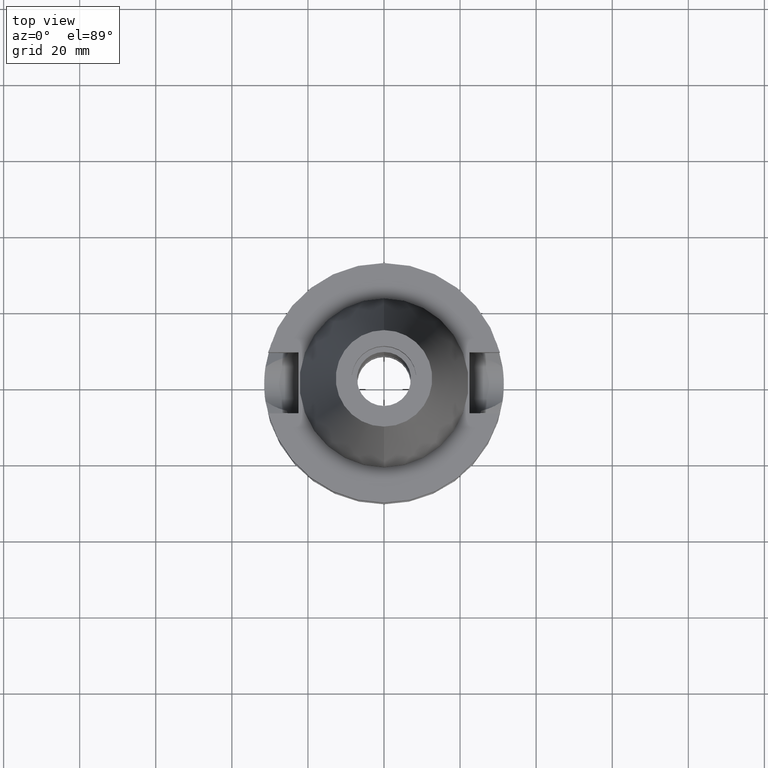
[diagram: clean part render]
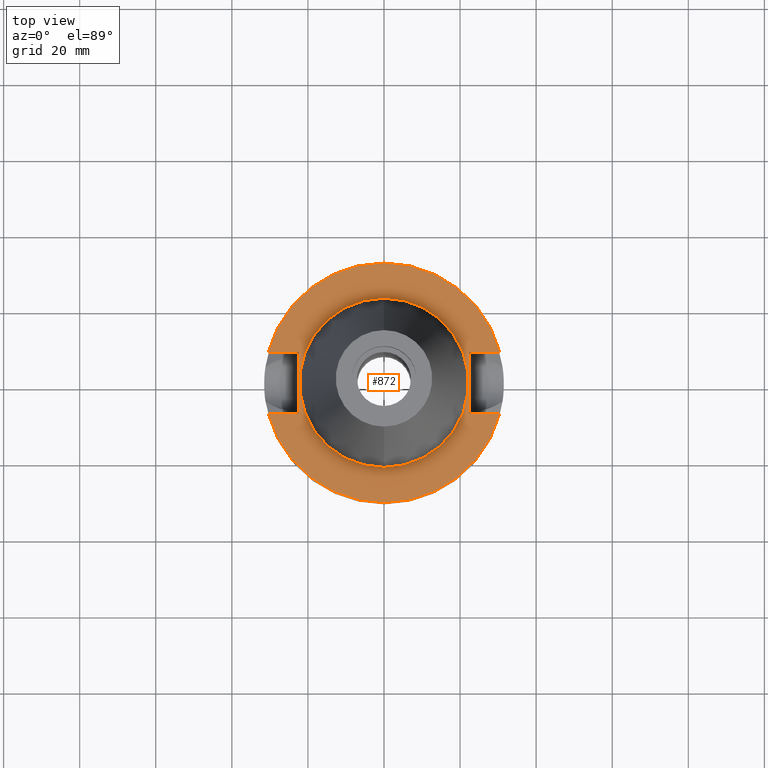
[diagram: same view with one face highlighted and labeled with its STEP entity id]
A machine part, top view. The second image highlights one B-rep face of the part: STEP entity #872.
In plain terms, the highlighted planar face has unit normal (0, 0, -1).
Its self-contained STEP definition (entity closure, byte-faithful):
#119 = VECTOR ( 'NONE', #3424, 1000.000000000000000 ) ;
#188 = DIRECTION ( 'NONE',  ( 0.0000000000000000000, 0.0000000000000000000, 1.000000000000000000 ) ) ;
#206 = LINE ( 'NONE', #3312, #2989 ) ;
#208 = ORIENTED_EDGE ( 'NONE', *, *, #1116, .F. ) ;
#298 = AXIS2_PLACEMENT_3D ( 'NONE', #3107, #2720, #517 ) ;
#331 = CARTESIAN_POINT ( 'NONE',  ( 0.0000000000000000000, -22.22500000000000142, -2.000000000000000000 ) ) ;
#357 = VECTOR ( 'NONE', #3148, 1000.000000000000000 ) ;
#375 = CARTESIAN_POINT ( 'NONE',  ( 0.0000000000000000000, 22.22500000000000142, -2.000000000000000000 ) ) ;
#460 = EDGE_CURVE ( 'NONE', #1214, #2730, #2681, .T. ) ;
#498 = CARTESIAN_POINT ( 'NONE',  ( -30.45402272279000044, 8.050000000000000711, -2.000000000000000000 ) ) ;
#517 = DIRECTION ( 'NONE',  ( 0.0000000000000000000, -1.000000000000000000, 0.0000000000000000000 ) ) ;
#529 = AXIS2_PLACEMENT_3D ( 'NONE', #2731, #1917, #3030 ) ;
#583 = LINE ( 'NONE', #1688, #357 ) ;
#626 = DIRECTION ( 'NONE',  ( 0.0000000000000000000, -1.000000000000000000, 0.0000000000000000000 ) ) ;
#634 = ORIENTED_EDGE ( 'NONE', *, *, #1158, .T. ) ;
#635 = CARTESIAN_POINT ( 'NONE',  ( -22.50000000000000000, -8.050000000000000711, -2.000000000000000000 ) ) ;
#677 = ORIENTED_EDGE ( 'NONE', *, *, #692, .F. ) ;
#692 = EDGE_CURVE ( 'NONE', #1952, #977, #3224, .T. ) ;
#727 = CARTESIAN_POINT ( 'NONE',  ( 30.45402272279000044, 8.050000000000000711, -2.000000000000000000 ) ) ;
#784 = CARTESIAN_POINT ( 'NONE',  ( -22.50000000000000000, -8.050000000000000711, -2.000000000000000000 ) ) ;
#806 = ORIENTED_EDGE ( 'NONE', *, *, #3183, .F. ) ;
#872 = ADVANCED_FACE ( 'NONE', ( #895, #2540 ), #1728, .F. ) ;
#895 = FACE_OUTER_BOUND ( 'NONE', #1704, .T. ) ;
#956 = EDGE_CURVE ( 'NONE', #2305, #977, #583, .T. ) ;
#977 = VERTEX_POINT ( 'NONE', #727 ) ;
#990 = DIRECTION ( 'NONE',  ( 0.0000000000000000000, 1.000000000000000000, 0.0000000000000000000 ) ) ;
#1087 = DIRECTION ( 'NONE',  ( -1.000000000000000000, 3.550916904668000126E-14, 0.0000000000000000000 ) ) ;
#1099 = EDGE_LOOP ( 'NONE', ( #2549, #2860 ) ) ;
#1116 = EDGE_CURVE ( 'NONE', #2305, #3552, #2727, .T. ) ;
#1123 = CIRCLE ( 'NONE', #298, 22.22500000000000142 ) ;
#1158 = EDGE_CURVE ( 'NONE', #1254, #2730, #206, .T. ) ;
#1169 = CARTESIAN_POINT ( 'NONE',  ( 0.0000000000000000000, 2.125007125879999817E-14, -2.000000000000000000 ) ) ;
#1214 = VERTEX_POINT ( 'NONE', #3045 ) ;
#1226 = LINE ( 'NONE', #635, #119 ) ;
#1254 = VERTEX_POINT ( 'NONE', #784 ) ;
#1378 = VERTEX_POINT ( 'NONE', #331 ) ;
#1453 = VERTEX_POINT ( 'NONE', #2049 ) ;
#1482 = DIRECTION ( 'NONE',  ( 0.0000000000000000000, -1.000000000000000000, 0.0000000000000000000 ) ) ;
#1601 = DIRECTION ( 'NONE',  ( 0.0000000000000000000, -1.000000000000000000, 0.0000000000000000000 ) ) ;
#1642 = CARTESIAN_POINT ( 'NONE',  ( -30.45402272279000044, -8.050000000000000711, -2.000000000000000000 ) ) ;
#1655 = LINE ( 'NONE', #1971, #2585 ) ;
#1675 = EDGE_CURVE ( 'NONE', #3552, #1214, #1910, .T. ) ;
#1688 = CARTESIAN_POINT ( 'NONE',  ( 22.50000000000000000, 8.050000000000000711, -2.000000000000000000 ) ) ;
#1704 = EDGE_LOOP ( 'NONE', ( #634, #1841, #3405, #208, #3190, #677, #806, #2134 ) ) ;
#1728 = PLANE ( 'NONE',  #3520 ) ;
#1745 = CARTESIAN_POINT ( 'NONE',  ( 0.0000000000000000000, 1.200153863163999924E-14, -2.000000000000000000 ) ) ;
#1753 = AXIS2_PLACEMENT_3D ( 'NONE', #1169, #3432, #626 ) ;
#1841 = ORIENTED_EDGE ( 'NONE', *, *, #460, .F. ) ;
#1910 = LINE ( 'NONE', #3039, #2388 ) ;
#1917 = DIRECTION ( 'NONE',  ( 0.0000000000000000000, 0.0000000000000000000, -1.000000000000000000 ) ) ;
#1937 = CARTESIAN_POINT ( 'NONE',  ( 22.50000000000000000, 8.050000000000000711, -2.000000000000000000 ) ) ;
#1952 = VERTEX_POINT ( 'NONE', #498 ) ;
#1971 = CARTESIAN_POINT ( 'NONE',  ( -22.50000000000000000, 8.050000000000000711, -2.000000000000000000 ) ) ;
#2049 = CARTESIAN_POINT ( 'NONE',  ( -22.50000000000000000, 8.050000000000000711, -2.000000000000000000 ) ) ;
#2134 = ORIENTED_EDGE ( 'NONE', *, *, #2815, .F. ) ;
#2305 = VERTEX_POINT ( 'NONE', #2889 ) ;
#2346 = CIRCLE ( 'NONE', #3189, 22.22500000000000142 ) ;
#2388 = VECTOR ( 'NONE', #2477, 1000.000000000000000 ) ;
#2477 = DIRECTION ( 'NONE',  ( 1.000000000000000000, 3.573249715389999860E-14, 0.0000000000000000000 ) ) ;
#2540 = FACE_BOUND ( 'NONE', #1099, .T. ) ;
#2549 = ORIENTED_EDGE ( 'NONE', *, *, #2974, .F. ) ;
#2550 = EDGE_CURVE ( 'NONE', #1378, #3454, #1123, .T. ) ;
#2585 = VECTOR ( 'NONE', #3396, 1000.000000000000000 ) ;
#2681 = CIRCLE ( 'NONE', #1753, 31.50000000000000000 ) ;
#2684 = CARTESIAN_POINT ( 'NONE',  ( 22.50000000000000000, -8.050000000000000711, -2.000000000000000000 ) ) ;
#2720 = DIRECTION ( 'NONE',  ( 0.0000000000000000000, 0.0000000000000000000, 1.000000000000000000 ) ) ;
#2727 = LINE ( 'NONE', #1937, #3176 ) ;
#2730 = VERTEX_POINT ( 'NONE', #1642 ) ;
#2731 = CARTESIAN_POINT ( 'NONE',  ( 0.0000000000000000000, 2.125007125879999817E-14, -2.000000000000000000 ) ) ;
#2815 = EDGE_CURVE ( 'NONE', #1254, #1453, #1226, .T. ) ;
#2860 = ORIENTED_EDGE ( 'NONE', *, *, #2550, .F. ) ;
#2889 = CARTESIAN_POINT ( 'NONE',  ( 22.50000000000000000, 8.050000000000000711, -2.000000000000000000 ) ) ;
#2974 = EDGE_CURVE ( 'NONE', #3454, #1378, #2346, .T. ) ;
#2989 = VECTOR ( 'NONE', #1087, 1000.000000000000000 ) ;
#3030 = DIRECTION ( 'NONE',  ( 0.0000000000000000000, 1.000000000000000000, 0.0000000000000000000 ) ) ;
#3039 = CARTESIAN_POINT ( 'NONE',  ( 22.50000000000000000, -8.050000000000000711, -2.000000000000000000 ) ) ;
#3045 = CARTESIAN_POINT ( 'NONE',  ( 30.45402272279000044, -8.050000000000000711, -2.000000000000000000 ) ) ;
#3107 = CARTESIAN_POINT ( 'NONE',  ( 0.0000000000000000000, 2.125007125879999817E-14, -2.000000000000000000 ) ) ;
#3129 = DIRECTION ( 'NONE',  ( 0.0000000000000000000, 0.0000000000000000000, -1.000000000000000000 ) ) ;
#3148 = DIRECTION ( 'NONE',  ( 1.000000000000000000, -3.506251283225999947E-14, 0.0000000000000000000 ) ) ;
#3176 = VECTOR ( 'NONE', #1601, 1000.000000000000000 ) ;
#3183 = EDGE_CURVE ( 'NONE', #1453, #1952, #1655, .T. ) ;
#3189 = AXIS2_PLACEMENT_3D ( 'NONE', #3288, #188, #990 ) ;
#3190 = ORIENTED_EDGE ( 'NONE', *, *, #956, .T. ) ;
#3224 = CIRCLE ( 'NONE', #529, 31.50000000000000000 ) ;
#3288 = CARTESIAN_POINT ( 'NONE',  ( 0.0000000000000000000, 2.125007125879999817E-14, -2.000000000000000000 ) ) ;
#3312 = CARTESIAN_POINT ( 'NONE',  ( -22.50000000000000000, -8.050000000000000711, -2.000000000000000000 ) ) ;
#3396 = DIRECTION ( 'NONE',  ( -1.000000000000000000, -3.550916904668000126E-14, 0.0000000000000000000 ) ) ;
#3405 = ORIENTED_EDGE ( 'NONE', *, *, #1675, .F. ) ;
#3424 = DIRECTION ( 'NONE',  ( 0.0000000000000000000, 1.000000000000000000, 0.0000000000000000000 ) ) ;
#3432 = DIRECTION ( 'NONE',  ( 0.0000000000000000000, 0.0000000000000000000, -1.000000000000000000 ) ) ;
#3454 = VERTEX_POINT ( 'NONE', #375 ) ;
#3520 = AXIS2_PLACEMENT_3D ( 'NONE', #1745, #3129, #1482 ) ;
#3552 = VERTEX_POINT ( 'NONE', #2684 ) ;